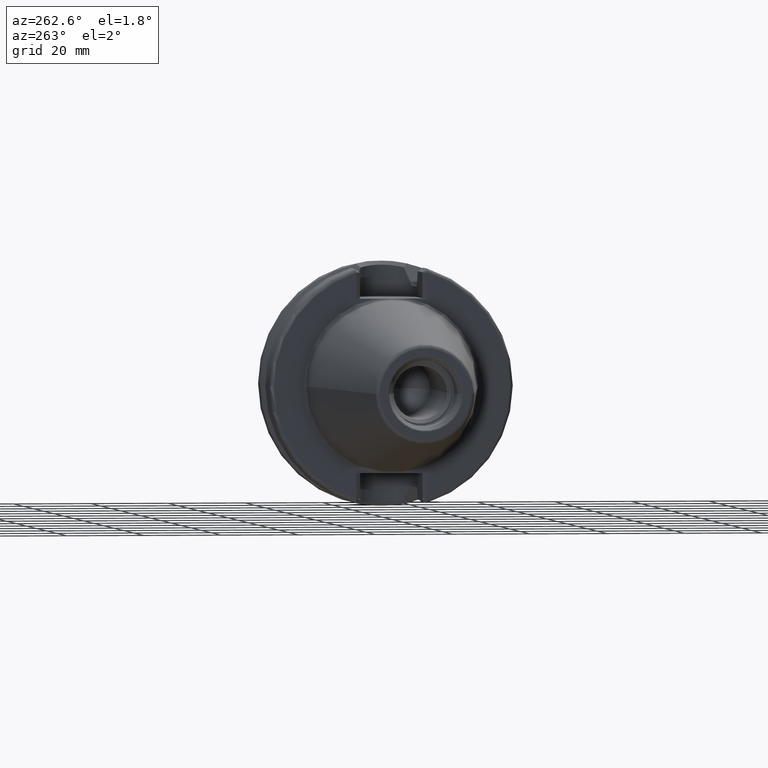
[diagram: clean part render]
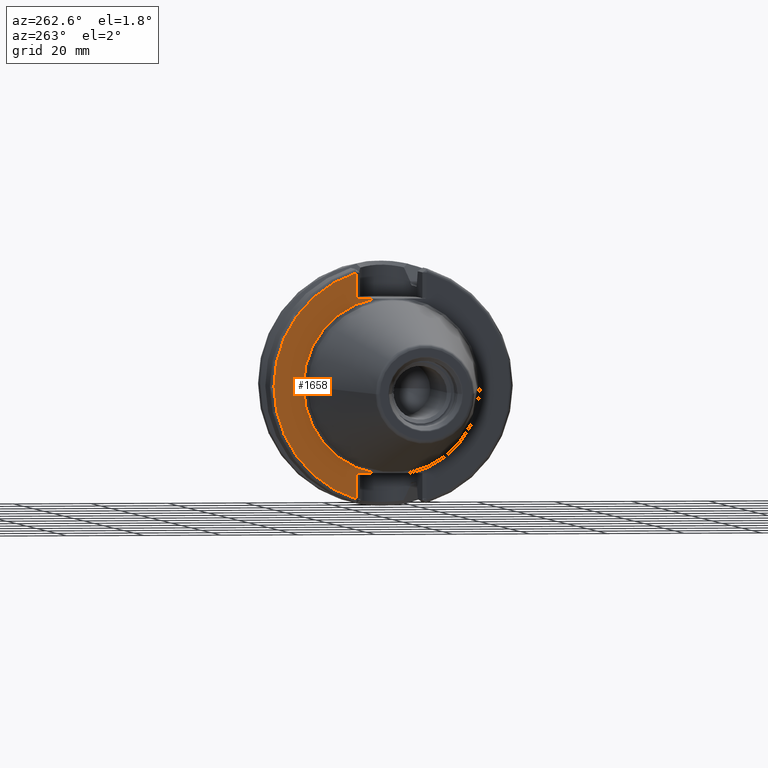
[diagram: same view with one face highlighted and labeled with its STEP entity id]
A machine part, auxiliary view. The second image highlights one B-rep face of the part: STEP entity #1658.
In plain terms, the highlighted planar face has unit normal (1, 0, 0).
Its self-contained STEP definition (entity closure, byte-faithful):
#96=CARTESIAN_POINT('',(2.E0,0.E0,0.E0));
#97=DIRECTION('',(-1.E0,0.E0,0.E0));
#98=DIRECTION('',(0.E0,1.E0,0.E0));
#99=AXIS2_PLACEMENT_3D('',#96,#97,#98);
#127=DIRECTION('',(2.137863157138E-6,2.138092596513E-6,9.999999999954E-1));
#128=VECTOR('',#127,6.649288203884E0);
#129=CARTESIAN_POINT('',(1.999985784732E0,9.094985783206E0,-2.909928820385E1));
#130=LINE('',#129,#128);
#131=DIRECTION('',(-4.462834027332E-6,-4.463945839096E-6,9.999999999801E-1));
#132=VECTOR('',#131,6.649296399125E0);
#133=CARTESIAN_POINT('',(2.E0,9.095E0,2.245E1));
#134=LINE('',#133,#132);
#592=CARTESIAN_POINT('',(2.E0,0.E0,0.E0));
#593=DIRECTION('',(-1.E0,0.E0,0.E0));
#594=DIRECTION('',(0.E0,2.983190614061E-1,9.544662055839E-1));
#595=AXIS2_PLACEMENT_3D('',#592,#593,#594);
#688=DIRECTION('',(0.E0,1.E0,0.E0));
#689=VECTOR('',#688,4.706022328605E0);
#690=CARTESIAN_POINT('',(2.E0,4.388977671395E0,2.245E1));
#691=LINE('',#690,#689);
#709=CARTESIAN_POINT('',(2.E0,0.E0,0.E0));
#710=DIRECTION('',(1.E0,0.E0,0.E0));
#711=DIRECTION('',(0.E0,1.E0,0.E0));
#712=AXIS2_PLACEMENT_3D('',#709,#710,#711);
#746=DIRECTION('',(0.E0,-1.E0,0.E0));
#747=VECTOR('',#746,4.706022328605E0);
#748=CARTESIAN_POINT('',(2.E0,9.095E0,-2.245E1));
#749=LINE('',#748,#747);
#1298=CARTESIAN_POINT('',(2.E0,2.2875E1,0.E0));
#1300=VERTEX_POINT('',#1298);
#1368=CARTESIAN_POINT('',(2.E0,4.388977671395E0,2.245E1));
#1369=VERTEX_POINT('',#1368);
#1376=CARTESIAN_POINT('',(2.E0,4.388977671395E0,-2.245E1));
#1377=VERTEX_POINT('',#1376);
#1414=CARTESIAN_POINT('',(2.E0,9.095027762300E0,2.909928051090E1));
#1416=VERTEX_POINT('',#1414);
#1418=CARTESIAN_POINT('',(2.E0,9.095E0,2.245E1));
#1419=VERTEX_POINT('',#1418);
#1428=CARTESIAN_POINT('',(1.999985784732E0,9.094985783206E0,-2.909928820385E1));
#1429=CARTESIAN_POINT('',(2.E0,9.095E0,-2.245E1));
#1430=VERTEX_POINT('',#1428);
#1431=VERTEX_POINT('',#1429);
#1638=CARTESIAN_POINT('',(2.E0,0.E0,0.E0));
#1639=DIRECTION('',(1.E0,0.E0,0.E0));
#1640=DIRECTION('',(0.E0,-1.E0,0.E0));
#1641=AXIS2_PLACEMENT_3D('',#1638,#1639,#1640);
#1642=PLANE('',#1641);
#1644=ORIENTED_EDGE('',*,*,#1643,.F.);
#1646=ORIENTED_EDGE('',*,*,#1645,.F.);
#1648=ORIENTED_EDGE('',*,*,#1647,.F.);
#1650=ORIENTED_EDGE('',*,*,#1649,.F.);
#1652=ORIENTED_EDGE('',*,*,#1651,.F.);
#1653=ORIENTED_EDGE('',*,*,#1624,.T.);
#1655=ORIENTED_EDGE('',*,*,#1654,.F.);
#1656=EDGE_LOOP('',(#1644,#1646,#1648,#1650,#1652,#1653,#1655));
#1657=FACE_OUTER_BOUND('',#1656,.F.);
#1658=ADVANCED_FACE('',(#1657),#1642,.F.);
#100=CIRCLE('',#99,2.2875E1);
#596=CIRCLE('',#595,3.04875E1);
#713=CIRCLE('',#712,2.2875E1);
#1624=EDGE_CURVE('',#1300,#1377,#100,.T.);
#1643=EDGE_CURVE('',#1430,#1431,#130,.T.);
#1645=EDGE_CURVE('',#1416,#1430,#596,.T.);
#1647=EDGE_CURVE('',#1419,#1416,#134,.T.);
#1649=EDGE_CURVE('',#1369,#1419,#691,.T.);
#1651=EDGE_CURVE('',#1300,#1369,#713,.T.);
#1654=EDGE_CURVE('',#1431,#1377,#749,.T.);